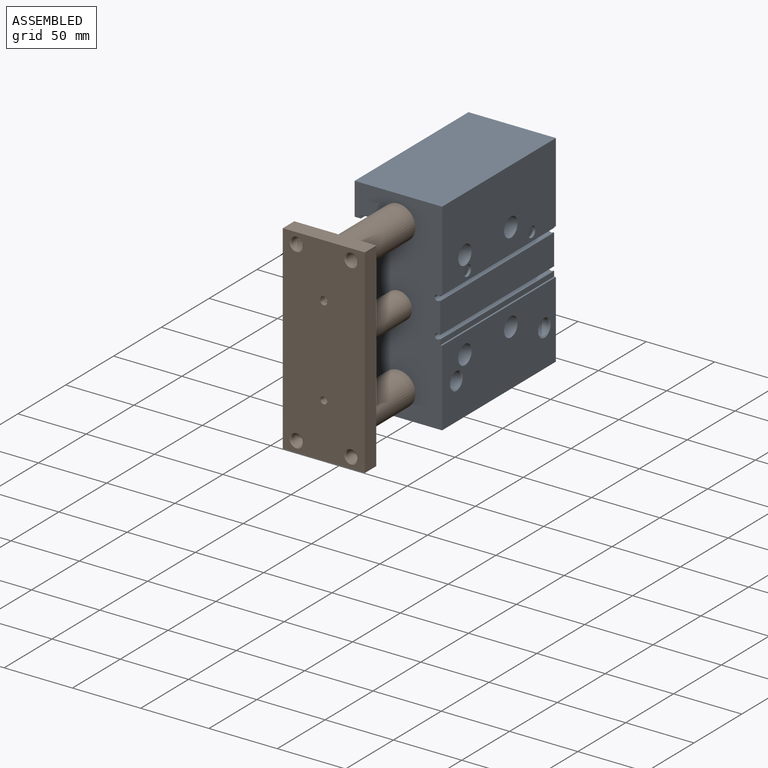
[diagram: assembled view]
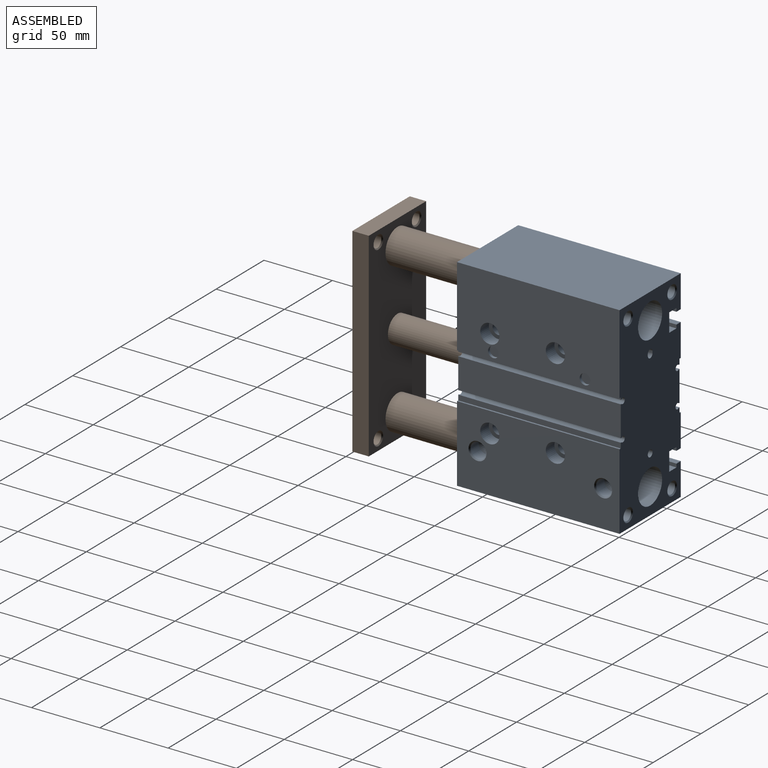
[diagram: assembled view, second angle]
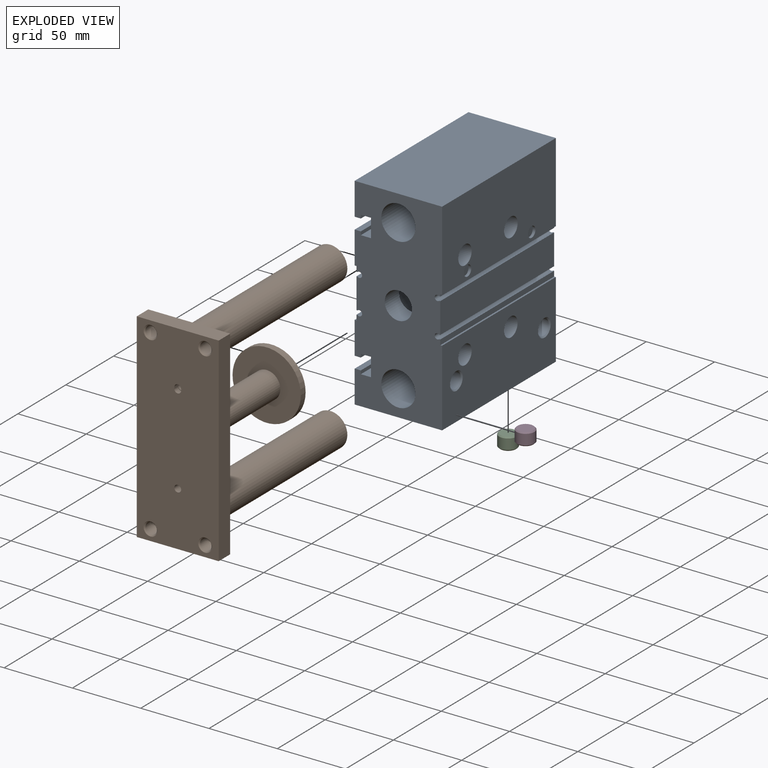
[diagram: exploded view]
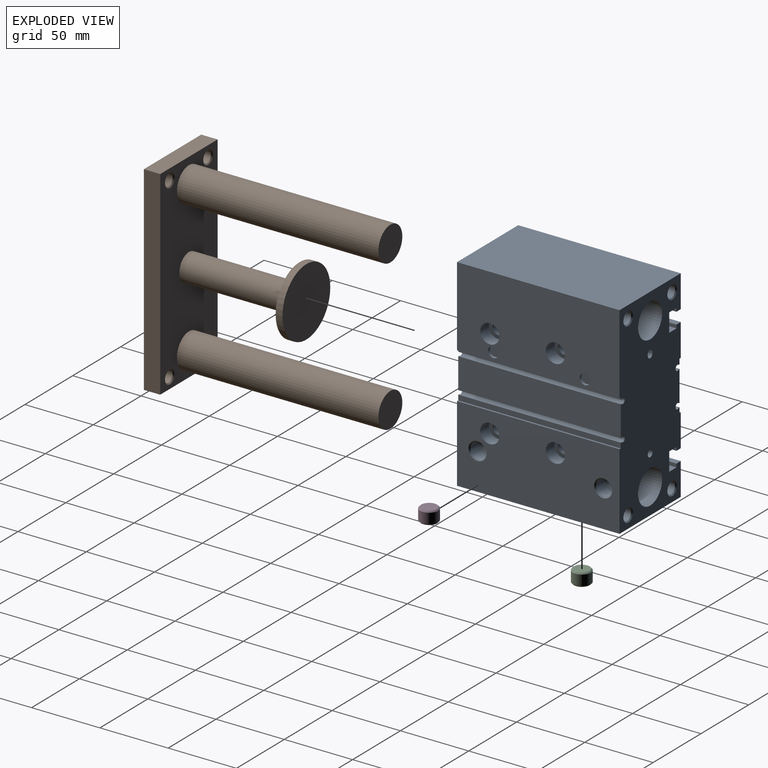
[diagram: exploded view, second angle]
ASSEMBLY  parts=4 mates=3
PART A: 116 faces, bbox 64x119x148 mm
  f0: cone r=866.03mm half-angle=60deg, axis (0,1,0), area 63.6mm2, adj f1
  f1: cylinder r=4.19mm len=21.19mm, axis (0,-1,0), area 557.5mm2, adj f0,f113
  f2: cone r=4.19mm half-angle=45deg, axis (0,1,0), area 33.1mm2, adj f3,f109
  f3: plane 148x64mm, normal (0,1,0), area 7707.3mm2, adj f2,f4,f6,f7,f8,f9,f10,f11
  f4: plane 119x23.75mm, normal (-1,0,0), area 2644.5mm2, adj f3,f5,f24,f25,f61,f65,f84,f85
  f5: plane 148x64mm, normal (0,-1,0), area 7751.6mm2, adj f4,f6,f7,f8,f9,f10,f11,f12
  f6: plane 119x4.5mm, normal (0,0,1), area 535.5mm2, adj f3,f5,f7,f48
  f7: plane 119x2.5mm, normal (1,0,0), area 297.5mm2, adj f3,f5,f6,f8
  f8: plane 119x7.5mm, normal (0,0,1), area 892.5mm2, adj f3,f5,f7,f9
  f9: plane 119x13.5mm, normal (-1,0,0), area 1606.5mm2, adj f3,f5,f8,f10
  f10: plane 119x7.5mm, normal (0,0,-1), area 892.5mm2, adj f3,f5,f9,f11
  f11: plane 119x2.5mm, normal (1,0,0), area 297.5mm2, adj f3,f5,f10,f12
  f12: plane 119x4.5mm, normal (0,0,-1), area 535.5mm2, adj f3,f5,f11,f13
  f13: plane 119x23.75mm, normal (-1,0,0), area 2649.5mm2, adj f3,f5,f12,f14,f50,f69,f73
  f14: plane 119x1.3mm, normal (0,0,1), area 154.7mm2, adj f3,f5,f13,f15
  f15: plane 119x3.8mm, normal (-1,0,0), area 452.2mm2, adj f3,f5,f14,f16
  f16: plane 119x0.74mm, normal (0,0,1), area 88mm2, adj f3,f5,f15,f17
  f17: cylinder r=2.02mm len=119mm, axis (0,1,0), area 1112.1mm2, adj f3,f5,f16,f18
  f18: plane 119x0.74mm, normal (0,0,-1), area 88mm2, adj f3,f5,f17,f19
  f19: plane 119x22.4mm, normal (-1,0,0), area 2665.6mm2, adj f3,f5,f18,f20
  f20: plane 119x0.74mm, normal (0,0,1), area 88mm2, adj f3,f5,f19,f21
  f21: cylinder r=2.02mm len=119mm, axis (0,1,0), area 1112.1mm2, adj f3,f5,f20,f22
  f22: plane 119x0.74mm, normal (0,0,-1), area 88mm2, adj f3,f5,f21,f23
  f23: plane 119x3.8mm, normal (-1,0,0), area 452.2mm2, adj f3,f5,f22,f24
  f24: plane 119x1.3mm, normal (0,0,-1), area 154.7mm2, adj f3,f4,f5,f23
  f25: plane 119x4.5mm, normal (0,0,1), area 535.5mm2, adj f3,f4,f5,f26
  f26: plane 119x2.5mm, normal (1,0,0), area 297.5mm2, adj f3,f5,f25,f27
  f27: plane 119x7.5mm, normal (0,0,1), area 892.5mm2, adj f3,f5,f26,f28
  f28: plane 119x13.5mm, normal (-1,0,0), area 1606.5mm2, adj f3,f5,f27,f29
  f29: plane 119x7.5mm, normal (0,0,-1), area 892.5mm2, adj f3,f5,f28,f30
  f30: plane 119x2.5mm, normal (1,0,0), area 297.5mm2, adj f3,f5,f29,f31
  f31: plane 119x4.5mm, normal (0,0,-1), area 535.5mm2, adj f3,f5,f30,f32
  f32: plane 119x23.75mm, normal (-1,0,0), area 2826.2mm2, adj f3,f5,f31,f33
  f33: plane 119x64mm, normal (0,0,1), area 7616mm2, adj f3,f5,f32,f34
  f34: plane 119x58.3mm, normal (1,0,0), area 6534.3mm2, adj f3,f5,f33,f35,f58,f62,f110,f111
  f35: plane 119x1.3mm, normal (0,0,-1), area 154.7mm2, adj f3,f5,f34,f36
  f36: plane 119x1.5mm, normal (1,0,0), area 178.5mm2, adj f3,f5,f35,f37
  f37: plane 119x0.74mm, normal (0,0,-1), area 88mm2, adj f3,f5,f36,f38
  f38: cylinder r=2.02mm len=119mm, axis (0,1,0), area 1112.1mm2, adj f3,f5,f37,f39
  f39: plane 119x0.74mm, normal (0,0,1), area 88mm2, adj f3,f5,f38,f40
  f40: plane 119x22.4mm, normal (1,0,0), area 2665.6mm2, adj f3,f5,f39,f41
  f41: plane 119x0.74mm, normal (0,0,-1), area 88mm2, adj f3,f5,f40,f42
  f42: cylinder r=2.02mm len=119mm, axis (0,1,0), area 1112.1mm2, adj f3,f5,f41,f43
  f43: plane 119x0.74mm, normal (0,0,1), area 88mm2, adj f3,f5,f42,f44
  f44: plane 119x3.8mm, normal (1,0,0), area 452.2mm2, adj f3,f5,f43,f45
  f45: plane 119x1.3mm, normal (0,0,1), area 154.7mm2, adj f3,f5,f44,f46
  f46: plane 119x56mm, normal (1,0,0), area 6084.2mm2, adj f3,f5,f45,f47,f66,f70,f74,f77
  f47: plane 119x64mm, normal (0,0,-1), area 7344.1mm2, adj f3,f5,f46,f48,f52,f55
  f48: plane 119x23.75mm, normal (-1,0,0), area 2826.2mm2, adj f3,f5,f6,f47
  f49: cylinder r=2.5mm len=5mm, axis (-1,0,0), area 62.8mm2, adj f51,f86,f89
  f50: cylinder r=2.5mm len=8mm, axis (-1,0,0), area 125.7mm2, adj f13,f90
  f51: cone r=2.5mm half-angle=60deg, axis (-1,0,0), area 22.7mm2, adj f49
  f52: cone r=5.72mm half-angle=45deg, axis (0,0,-1), area 46.8mm2, adj f47,f53
  f53: cylinder r=5.72mm len=11.45mm, axis (0,0,1), area 307.2mm2, adj f52,f54
  f54: cone r=866.03mm half-angle=60deg, axis (0,0,-1), area 118.8mm2, adj f53
  f55: cone r=5.72mm half-angle=45deg, axis (0,0,-1), area 46.8mm2, adj f47,f56
  f56: cylinder r=5.72mm len=11.45mm, axis (0,0,1), area 307.2mm2, adj f55,f57
  f57: cone r=866.03mm half-angle=60deg, axis (0,0,-1), area 118.8mm2, adj f56
  f58: cylinder r=7mm len=14mm, axis (-1,0,0), area 395.8mm2, adj f34,f59
  f59: plane 14x14mm, normal (1,0,0), area 95.8mm2, adj f58,f60
  f60: cylinder r=4.3mm len=54.3mm, axis (-1,0,0), area 1467.1mm2, adj f59,f61
  f61: cone r=5mm half-angle=45deg, axis (-1,0,0), area 28.9mm2, adj f4,f60
  f62: cylinder r=7mm len=14mm, axis (-1,0,0), area 395.8mm2, adj f34,f63
  f63: plane 14x14mm, normal (1,0,0), area 95.8mm2, adj f62,f64
  f64: cylinder r=4.3mm len=54.3mm, axis (-1,0,0), area 1467.1mm2, adj f63,f65
  f65: cone r=5mm half-angle=45deg, axis (-1,0,0), area 28.9mm2, adj f4,f64
  f66: cylinder r=7mm len=14mm, axis (-1,0,0), area 395.8mm2, adj f46,f67
  f67: plane 14x14mm, normal (1,0,0), area 95.8mm2, adj f66,f68
  f68: cylinder r=4.3mm len=54.3mm, axis (-1,0,0), area 1467.1mm2, adj f67,f69
  f69: cone r=5mm half-angle=45deg, axis (-1,0,0), area 28.9mm2, adj f13,f68
  f70: cylinder r=7mm len=14mm, axis (-1,0,0), area 395.8mm2, adj f46,f71
  f71: plane 14x14mm, normal (1,0,0), area 95.8mm2, adj f70,f72
  f72: cylinder r=4.3mm len=54.3mm, axis (-1,0,0), area 1467.1mm2, adj f71,f73
  f73: cone r=5mm half-angle=45deg, axis (-1,0,0), area 28.9mm2, adj f13,f72
  f74: cone r=5.72mm half-angle=45deg, axis (1,0,0), area 46.8mm2, adj f46,f75
  f75: cylinder r=5.72mm len=11.45mm, axis (-1,0,0), area 307.2mm2, adj f74,f76
  f76: cone r=866.03mm half-angle=60deg, axis (1,0,0), area 118.8mm2, adj f75
  f77: cone r=5.72mm half-angle=45deg, axis (1,0,0), area 46.8mm2, adj f46,f78
  f78: cylinder r=5.72mm len=11.45mm, axis (-1,0,0), area 307.2mm2, adj f77,f79
  f79: cone r=866.03mm half-angle=60deg, axis (1,0,0), area 118.8mm2, adj f78
  f80: plane 50x50mm, normal (0,-1,0), area 1963.5mm2, adj f81
  f81: cylinder r=25mm len=55mm, axis (0,-1,0), area 8639.4mm2, adj f80,f82
  f82: plane 50x50mm, normal (0,1,0), area 1649.3mm2, adj f81,f83
  f83: cylinder r=10mm len=20mm, axis (0,-1,0), area 942.5mm2, adj f5,f82
  f84: plane 4x1mm, normal (0,1,0), area 4mm2, adj f4,f86,f87,f88,f89
  f85: plane 4x1mm, normal (0,-1,0), area 4mm2, adj f4,f86,f87,f88,f89
  f86: plane 5x3mm, normal (-1,0,0), area 2.5mm2, adj f49,f84,f85,f87
  f87: cylinder r=2.5mm len=5mm, axis (1,0,0), area 31.4mm2, adj f4,f84,f85,f86
  f88: cylinder r=2.5mm len=5mm, axis (1,0,0), area 31.4mm2, adj f4,f84,f85,f89
  f89: plane 5x3mm, normal (-1,0,0), area 2.5mm2, adj f49,f84,f85,f88
  f90: cone r=2.5mm half-angle=60deg, axis (-1,0,0), area 22.7mm2, adj f50
  f91: cylinder r=12.5mm len=119mm, axis (0,1,0), area 9346.2mm2, adj f3,f5
  f92: cylinder r=12.5mm len=119mm, axis (0,1,0), area 9346.2mm2, adj f3,f5
  f93: cone r=866.03mm half-angle=60deg, axis (0,1,0), area 22.7mm2, adj f94
  f94: cylinder r=2.5mm len=5mm, axis (0,-1,0), area 62.8mm2, adj f93,f99,f115
  f95: cylinder r=2.5mm len=5mm, axis (0,-1,0), area 31.4mm2, adj f3,f96,f98,f115
  f96: plane 4x1mm, normal (1,0,0), area 4mm2, adj f3,f95,f97,f99,f115
  f97: cylinder r=2.5mm len=5mm, axis (0,-1,0), area 31.4mm2, adj f3,f96,f98,f99
  f98: plane 4x1mm, normal (-1,0,0), area 4mm2, adj f3,f95,f97,f99,f115
  f99: plane 5x3mm, normal (0,1,0), area 2.5mm2, adj f94,f96,f97,f98
  f100: cone r=866.03mm half-angle=60deg, axis (0,1,0), area 22.7mm2, adj f101
  f101: cylinder r=2.5mm len=8mm, axis (0,-1,0), area 125.7mm2, adj f3,f100
  f102: cone r=866.03mm half-angle=60deg, axis (0,1,0), area 63.6mm2, adj f103
  f103: cylinder r=4.19mm len=21.19mm, axis (0,-1,0), area 557.5mm2, adj f102,f104
  f104: cone r=4.19mm half-angle=45deg, axis (0,1,0), area 33.1mm2, adj f3,f103
  f105: cone r=866.03mm half-angle=60deg, axis (0,1,0), area 63.6mm2, adj f106
  f106: cylinder r=4.19mm len=21.19mm, axis (0,-1,0), area 557.5mm2, adj f105,f107
  f107: cone r=4.19mm half-angle=45deg, axis (0,1,0), area 33.1mm2, adj f3,f106
  f108: cone r=866.03mm half-angle=60deg, axis (0,1,0), area 63.6mm2, adj f109
  f109: cylinder r=4.19mm len=21.19mm, axis (0,-1,0), area 557.5mm2, adj f2,f108
  f110: cylinder r=3.9mm len=7.8mm, axis (-1,0,0), area 49mm2, adj f34,f114
  f111: cylinder r=3.9mm len=7.8mm, axis (-1,0,0), area 49mm2, adj f34,f112
  f112: plane 7.8x7.8mm, normal (1,0,0), area 47.8mm2, adj f111
  f113: cone r=4.19mm half-angle=45deg, axis (0,1,0), area 33.1mm2, adj f1,f3
  f114: plane 7.8x7.8mm, normal (1,0,0), area 47.8mm2, adj f110
  f115: plane 5x3mm, normal (0,1,0), area 2.5mm2, adj f94,f95,f96,f98
PART B: 36 faces, bbox 60x159.5x146 mm
  f0: cone r=866.03mm half-angle=60deg, axis (0,-1,0), area 22.7mm2, adj f1
  f1: cylinder r=2.5mm len=8mm, axis (0,1,0), area 125.7mm2, adj f0,f5
  f2: cylinder r=2.5mm len=5mm, axis (0,1,0), area 62.8mm2, adj f17,f22,f23
  f3: plane 146x12mm, normal (-1,0,0), area 1752mm2, adj f4,f5,f7,f8
  f4: plane 60x12mm, normal (0,0,-1), area 720mm2, adj f3,f5,f7,f9
  f5: plane 146x60mm, normal (0,-1,0), area 8401.6mm2, adj f1,f3,f4,f8,f9,f18,f19,f20
  f6: cylinder r=12.5mm len=147.5mm, axis (0,1,0), area 11584.6mm2, adj f7,f10
  f7: plane 146x60mm, normal (0,1,0), area 7149.9mm2, adj f3,f4,f6,f8,f9,f11,f13,f26
  f8: plane 60x12mm, normal (0,0,1), area 720mm2, adj f3,f5,f7,f9
  f9: plane 146x12mm, normal (1,0,0), area 1752mm2, adj f4,f5,f7,f8
  f10: plane 25x25mm, normal (0,1,0), area 490.9mm2, adj f6
  f11: cylinder r=12.5mm len=147.5mm, axis (0,1,0), area 11584.6mm2, adj f7,f12
  f12: plane 25x25mm, normal (0,1,0), area 490.9mm2, adj f11
  f13: cylinder r=10mm len=81mm, axis (0,-1,0), area 5089.4mm2, adj f7,f14
  f14: plane 50x50mm, normal (0,-1,0), area 1649.3mm2, adj f13,f15
  f15: cylinder r=25mm len=50mm, axis (0,-1,0), area 785.4mm2, adj f14,f16
  f16: plane 50x50mm, normal (0,1,0), area 1963.5mm2, adj f15
  f17: cone r=866.03mm half-angle=60deg, axis (0,-1,0), area 22.7mm2, adj f2
  f18: cylinder r=2.5mm len=5mm, axis (0,1,0), area 31.4mm2, adj f5,f19,f21,f23
  f19: plane 4x1mm, normal (1,0,0), area 4mm2, adj f5,f18,f20,f22,f23
  f20: cylinder r=2.5mm len=5mm, axis (0,1,0), area 31.4mm2, adj f5,f19,f21,f22
  f21: plane 4x1mm, normal (-1,0,0), area 4mm2, adj f5,f18,f20,f22,f23
  f22: plane 5x3mm, normal (0,-1,0), area 2.5mm2, adj f2,f19,f20,f21
  f23: plane 5x3mm, normal (0,-1,0), area 2.5mm2, adj f2,f18,f19,f21
  f24: cone r=4.19mm half-angle=45deg, axis (0,-1,0), area 33.1mm2, adj f5,f25
  f25: cylinder r=4.19mm len=10.38mm, axis (0,1,0), area 273mm2, adj f24,f26
  f26: cone r=5mm half-angle=45deg, axis (0,1,0), area 33.1mm2, adj f7,f25
  f27: cone r=5mm half-angle=45deg, axis (0,1,0), area 33.1mm2, adj f7,f28
  f28: cylinder r=4.19mm len=10.38mm, axis (0,1,0), area 273mm2, adj f27,f29
  f29: cone r=4.19mm half-angle=45deg, axis (0,-1,0), area 33.1mm2, adj f5,f28
  f30: cone r=5mm half-angle=45deg, axis (0,1,0), area 33.1mm2, adj f7,f31
  f31: cylinder r=4.19mm len=10.38mm, axis (0,1,0), area 273mm2, adj f30,f32
  f32: cone r=4.19mm half-angle=45deg, axis (0,-1,0), area 33.1mm2, adj f5,f31
  f33: cone r=5mm half-angle=45deg, axis (0,1,0), area 33.1mm2, adj f7,f34
  f34: cylinder r=4.19mm len=10.38mm, axis (0,1,0), area 273mm2, adj f33,f35
  f35: cone r=4.19mm half-angle=45deg, axis (0,-1,0), area 33.1mm2, adj f5,f34
PART C: 12 faces, bbox 9.4x13.2x13.2 mm
  f0: cone r=5.72mm half-angle=45deg, axis (1,0,0), area 46.8mm2, adj f1,f7
  f1: plane 11.45x11.45mm, normal (-1,0,0), area 71.7mm2, adj f0,f2,f3,f4,f8,f9,f10
  f2: plane 3x2mm, normal (0,0.5,0.87), area 6.9mm2, adj f1,f3,f4,f11
  f3: plane 3x2mm, normal (0,-0.5,0.87), area 6.9mm2, adj f1,f2,f8,f11
  f4: plane 3.46x2mm, normal (0,1,0), area 6.9mm2, adj f1,f2,f10,f11
  f5: plane 11.45x11.45mm, normal (1,0,0), area 102.9mm2, adj f6
  f6: cone r=6.58mm half-angle=45deg, axis (-1,0,0), area 46.8mm2, adj f5,f7
  f7: cylinder r=6.58mm len=13.16mm, axis (-1,0,0), area 317.8mm2, adj f0,f6
  f8: plane 3.46x2mm, normal (0,-1,0), area 6.9mm2, adj f1,f3,f9,f11
  f9: plane 3x2mm, normal (0,-0.5,-0.87), area 6.9mm2, adj f1,f8,f10,f11
  f10: plane 3x2mm, normal (0,0.5,-0.87), area 6.9mm2, adj f1,f4,f9,f11
  f11: plane 6.93x6mm, normal (-1,0,0), area 31.2mm2, adj f2,f3,f4,f8,f9,f10
PART D: same geometry as C
PLACE A t=(50.94,-60.52,-186.06)mm fixed
PLACE B t=(50.94,-110.52,-186.06)mm
PLACE C rot(axis=(-0.58,-0.58,-0.58),120deg) t=(72.44,23.48,-260.06)mm
PLACE D rot(axis=(-0.58,-0.58,-0.58),120deg) t=(72.44,-45.52,-260.06)mm
MATE fastened A.f52 <-> C.f7  axis (0,0,-1) through (72.44,23.48,-260.06)mm
MATE fastened A.f55 <-> D.f7  axis (0,0,-1) through (72.44,-45.52,-260.06)mm
MATE slider A.f81 <-> B.f13  axis (0,-1,0) through (50.94,9.48,-186.06)mm
